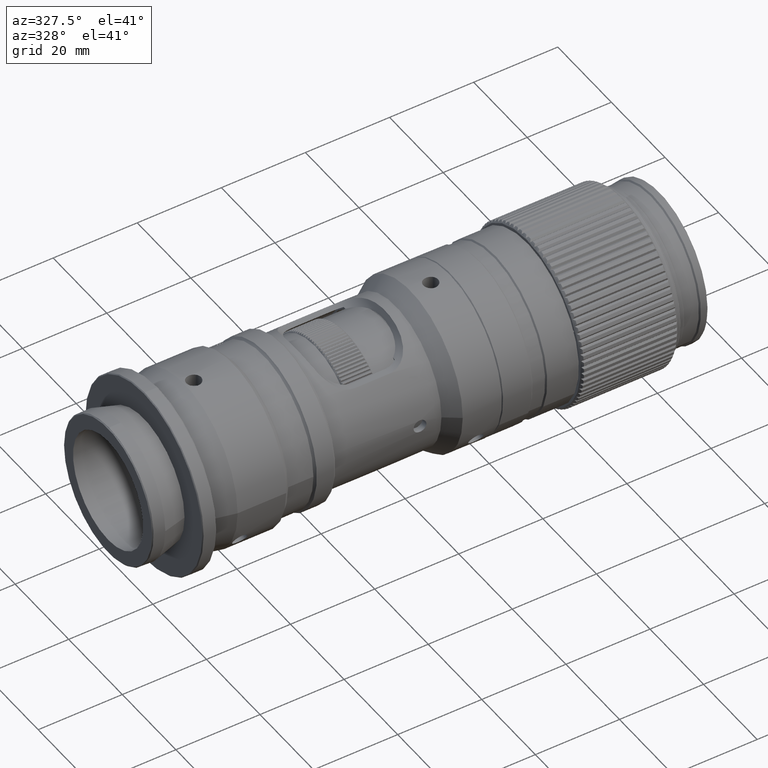
[diagram: clean part render]
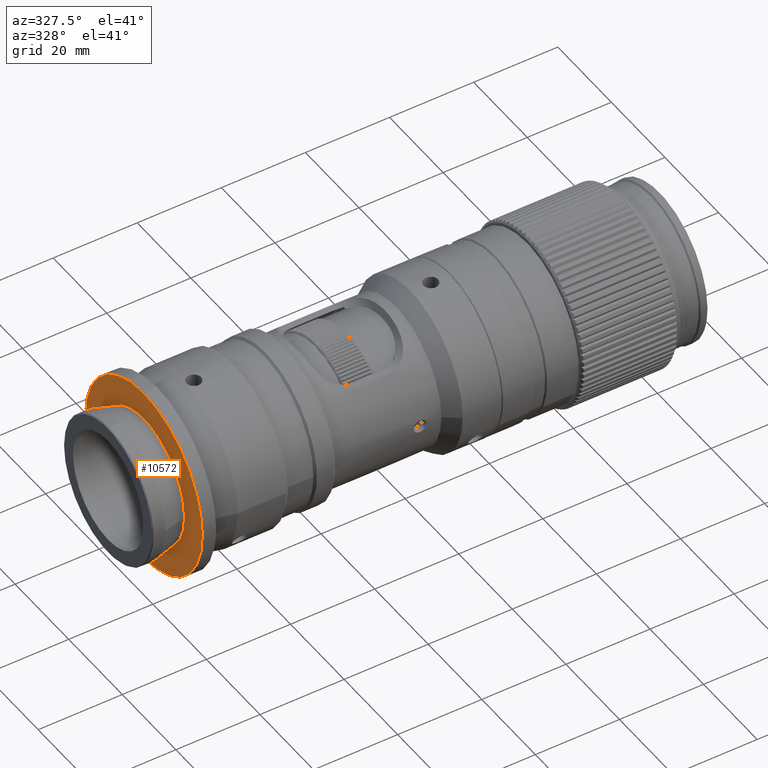
[diagram: same view with one face highlighted and labeled with its STEP entity id]
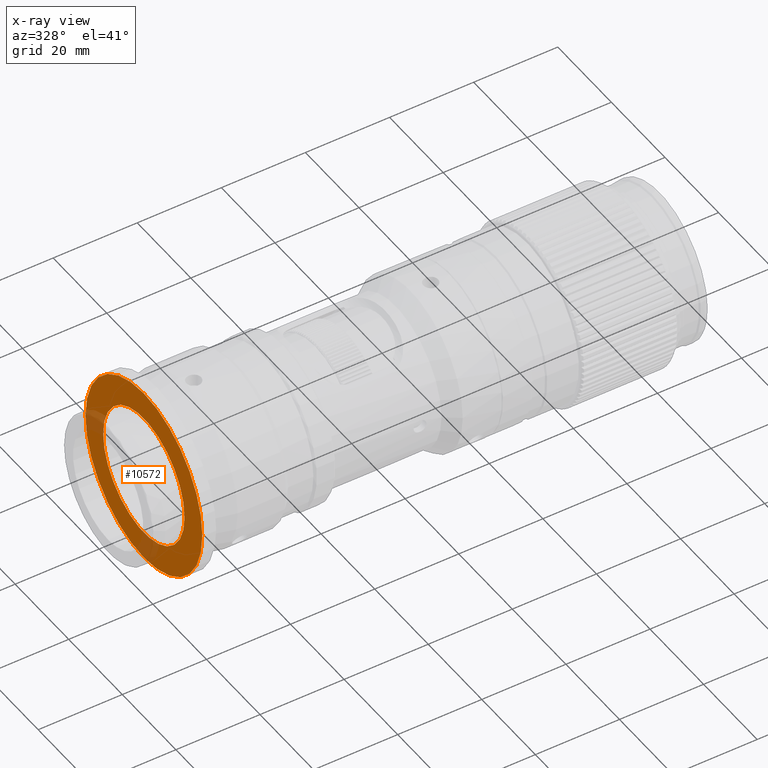
[diagram: x-ray of the same camera — body ghosted, the highlighted face saturated]
A machine part, auxiliary view. The second image highlights one B-rep face of the part: STEP entity #10572.
The next image is the same camera in x-ray: the body ghosted, the highlighted face saturated — about 10% of this face is hidden behind the body in this view.
In plain terms, the highlighted planar face has unit normal (-1, 0, 0).
Its self-contained STEP definition (entity closure, byte-faithful):
#1745 = ORIENTED_EDGE ( 'NONE', *, *, #19174, .T. ) ;
#4649 = DIRECTION ( 'NONE',  ( -1.000000000000000000, -3.942553354492742668E-17, 0.000000000000000000 ) ) ;
#5359 = FACE_OUTER_BOUND ( 'NONE', #14204, .T. ) ;
#6804 = CARTESIAN_POINT ( 'NONE',  ( 1.758131624842243612, 10.92396185724102331, 15.71905592086952907 ) ) ;
#10572 = ADVANCED_FACE ( 'NONE', ( #23759, #5359 ), #16042, .T. ) ;
#11190 = CARTESIAN_POINT ( 'NONE',  ( 1.758133273329127721, 47.91023935413070234, 15.71905592086952907 ) ) ;
#13071 = DIRECTION ( 'NONE',  ( 0.000000000000000000, 0.000000000000000000, 1.000000000000000000 ) ) ;
#14204 = EDGE_LOOP ( 'NONE', ( #18875 ) ) ;
#14548 = EDGE_CURVE ( 'NONE', #32042, #32042, #14808, .T. ) ;
#14808 = CIRCLE ( 'NONE', #23772, 21.80000000000109495 ) ;
#16042 = PLANE ( 'NONE',  #20164 ) ;
#16795 = DIRECTION ( 'NONE',  ( 1.427870882390552101E-17, -1.000000000000000000, 0.000000000000000000 ) ) ;
#17966 = CARTESIAN_POINT ( 'NONE',  ( 1.758133273329128610, 26.11023935412960739, 15.71905592086952907 ) ) ;
#18875 = ORIENTED_EDGE ( 'NONE', *, *, #14548, .T. ) ;
#19174 = EDGE_CURVE ( 'NONE', #22202, #22202, #30186, .T. ) ;
#20164 = AXIS2_PLACEMENT_3D ( 'NONE', #21128, #31808, #13071 ) ;
#21128 = CARTESIAN_POINT ( 'NONE',  ( 1.758132449085686000, 26.11024147277483110, 15.71905592086952907 ) ) ;
#22202 = VERTEX_POINT ( 'NONE', #6804 ) ;
#23759 = FACE_BOUND ( 'NONE', #25013, .T. ) ;
#23772 = AXIS2_PLACEMENT_3D ( 'NONE', #17966, #4649, #33894 ) ;
#24846 = CARTESIAN_POINT ( 'NONE',  ( 1.758131624842243390, 26.11023935412960739, 15.71905592086952907 ) ) ;
#25013 = EDGE_LOOP ( 'NONE', ( #1745 ) ) ;
#30186 = CIRCLE ( 'NONE', #34663, 15.18627749688858408 ) ;
#31808 = DIRECTION ( 'NONE',  ( -1.000000000000000000, 0.000000000000000000, 0.000000000000000000 ) ) ;
#32042 = VERTEX_POINT ( 'NONE', #11190 ) ;
#32885 = DIRECTION ( 'NONE',  ( 1.000000000000000000, 1.302344951934567594E-17, 0.000000000000000000 ) ) ;
#33894 = DIRECTION ( 'NONE',  ( -3.978723568753945060E-17, 1.000000000000000000, 0.000000000000000000 ) ) ;
#34663 = AXIS2_PLACEMENT_3D ( 'NONE', #24846, #32885, #16795 ) ;